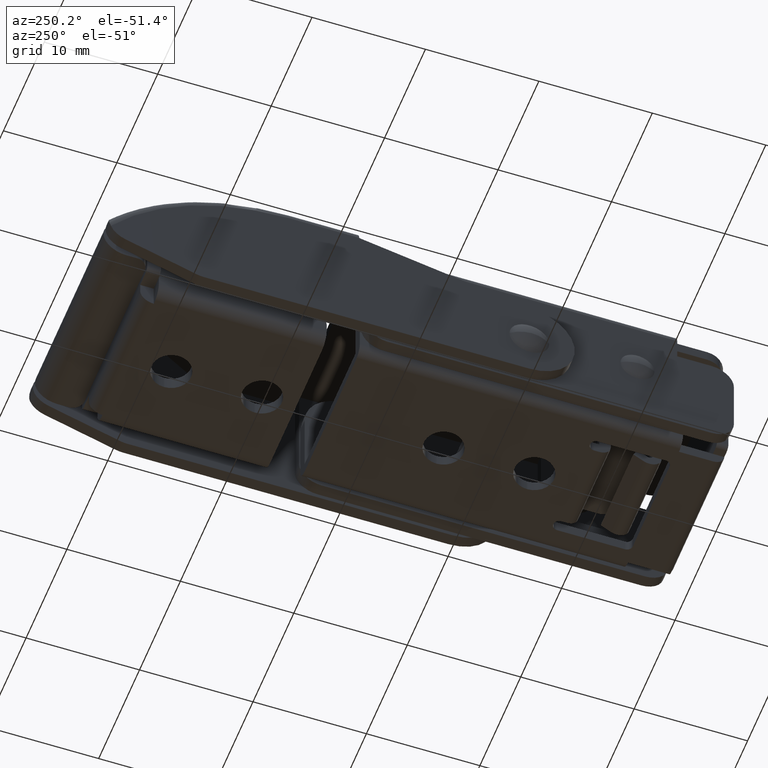
[diagram: clean part render]
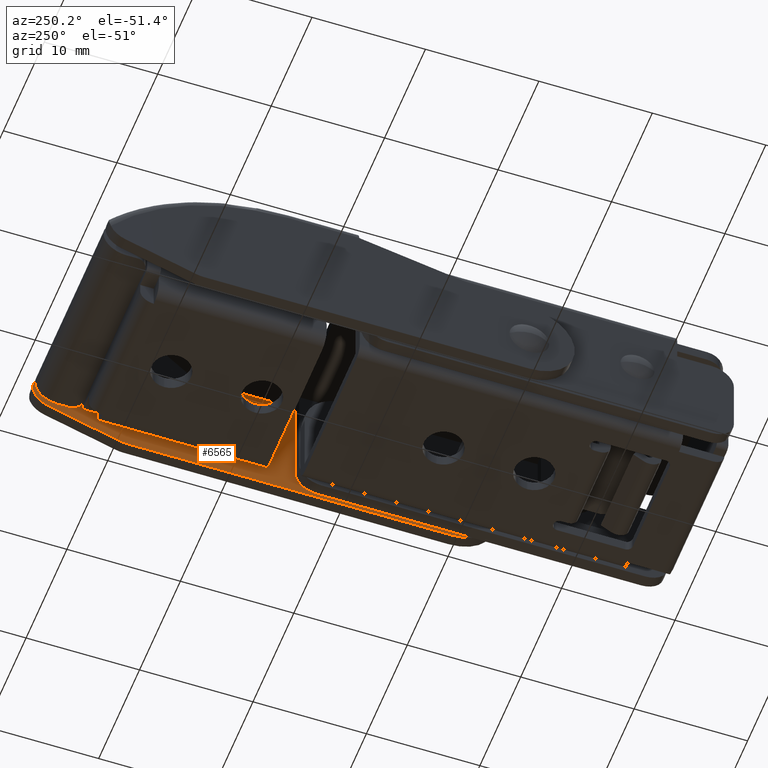
[diagram: same view with one face highlighted and labeled with its STEP entity id]
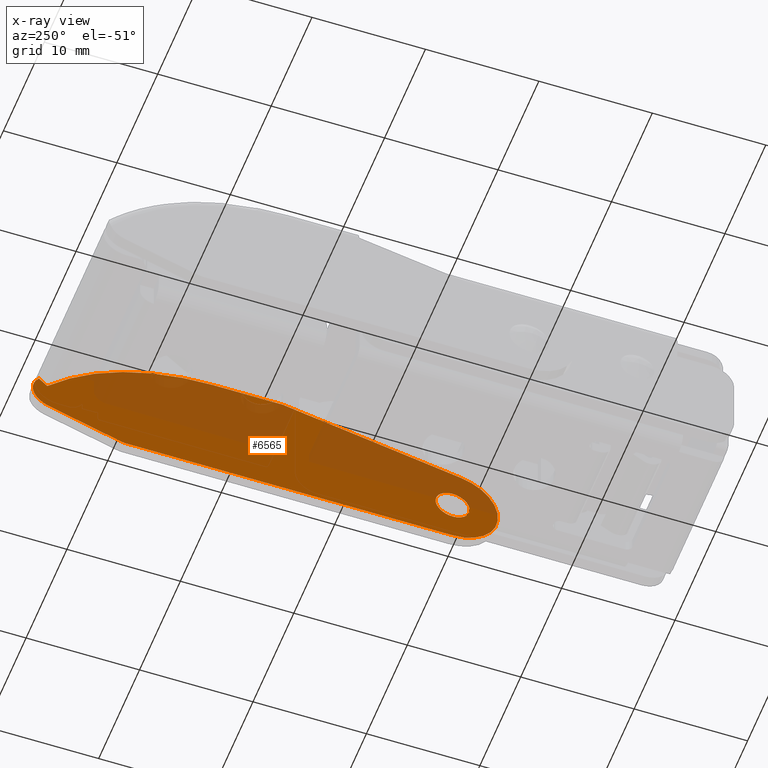
[diagram: x-ray of the same camera — body ghosted, the highlighted face saturated]
A machine part, auxiliary view. The second image highlights one B-rep face of the part: STEP entity #6565.
The next image is the same camera in x-ray: the body ghosted, the highlighted face saturated — about 47% of this face is hidden behind the body in this view.
In plain terms, the highlighted planar face has unit normal (1, 0, 0).
Its self-contained STEP definition (entity closure, byte-faithful):
#91 = EDGE_CURVE ( 'NONE', #6999, #3627, #3610, .T. ) ;
#98 = CARTESIAN_POINT ( 'NONE',  ( 8.900000000000000400, 36.45856910111063300, 1.368421052631581200 ) ) ;
#117 = DIRECTION ( 'NONE',  ( 0.0000000000000000000, 0.9532542188779434800, 0.3021694792519620300 ) ) ;
#226 = CARTESIAN_POINT ( 'NONE',  ( 8.900000000000000400, 0.0000000000000000000, -4.000000000000000000 ) ) ;
#235 = CIRCLE ( 'NONE', #1897, 1.500000000000000200 ) ;
#318 = DIRECTION ( 'NONE',  ( 1.000000000000000000, 0.0000000000000000000, 0.0000000000000000000 ) ) ;
#333 = EDGE_LOOP ( 'NONE', ( #6440, #1939 ) ) ;
#459 = ORIENTED_EDGE ( 'NONE', *, *, #1227, .F. ) ;
#559 = VERTEX_POINT ( 'NONE', #1360 ) ;
#631 = VERTEX_POINT ( 'NONE', #6249 ) ;
#848 = VECTOR ( 'NONE', #3152, 1000.000000000000000 ) ;
#875 = DIRECTION ( 'NONE',  ( 1.000000000000000000, 0.0000000000000000000, 0.0000000000000000000 ) ) ;
#938 = CARTESIAN_POINT ( 'NONE',  ( 8.900000000000000400, 34.99999999999999300, 0.0000000000000000000 ) ) ;
#1135 = AXIS2_PLACEMENT_3D ( 'NONE', #7335, #3679, #7959 ) ;
#1201 = VECTOR ( 'NONE', #3137, 1000.000000000000000 ) ;
#1227 = EDGE_CURVE ( 'NONE', #7007, #1608, #3282, .T. ) ;
#1304 = EDGE_CURVE ( 'NONE', #4248, #1941, #7395, .T. ) ;
#1360 = CARTESIAN_POINT ( 'NONE',  ( 8.900000000000000400, 1.836970198721029900E-016, -1.500000000000000200 ) ) ;
#1418 = CARTESIAN_POINT ( 'NONE',  ( 8.900000000000000400, 0.0000000000000000000, 0.0000000000000000000 ) ) ;
#1552 = DIRECTION ( 'NONE',  ( 0.0000000000000000000, 0.0000000000000000000, -1.000000000000000000 ) ) ;
#1608 = VERTEX_POINT ( 'NONE', #4836 ) ;
#1669 = DIRECTION ( 'NONE',  ( 1.000000000000000000, 0.0000000000000000000, 0.0000000000000000000 ) ) ;
#1804 = EDGE_LOOP ( 'NONE', ( #459, #4329, #2261, #3034, #4606, #7663, #7049, #7955, #2955 ) ) ;
#1837 = CARTESIAN_POINT ( 'NONE',  ( 8.900000000000000400, 0.0000000000000000000, 1.500000000000000200 ) ) ;
#1897 = AXIS2_PLACEMENT_3D ( 'NONE', #4588, #875, #5208 ) ;
#1939 = ORIENTED_EDGE ( 'NONE', *, *, #5043, .T. ) ;
#1941 = VERTEX_POINT ( 'NONE', #2841 ) ;
#2037 = EDGE_CURVE ( 'NONE', #3627, #7043, #6918, .T. ) ;
#2043 = DIRECTION ( 'NONE',  ( 0.0000000000000000000, 0.0000000000000000000, -1.000000000000000000 ) ) ;
#2210 = LINE ( 'NONE', #4583, #6728 ) ;
#2220 = EDGE_CURVE ( 'NONE', #7043, #631, #2884, .T. ) ;
#2261 = ORIENTED_EDGE ( 'NONE', *, *, #1304, .F. ) ;
#2465 = AXIS2_PLACEMENT_3D ( 'NONE', #4044, #318, #4658 ) ;
#2591 = CARTESIAN_POINT ( 'NONE',  ( 8.900000000000000400, 21.14359353944897900, 7.000000000000004400 ) ) ;
#2841 = CARTESIAN_POINT ( 'NONE',  ( 8.900000000000000400, 28.69059892324149200, -4.000000000000000000 ) ) ;
#2884 = LINE ( 'NONE', #4955, #1201 ) ;
#2955 = ORIENTED_EDGE ( 'NONE', *, *, #6555, .F. ) ;
#2962 = EDGE_CURVE ( 'NONE', #7007, #1941, #3639, .T. ) ;
#2966 = CARTESIAN_POINT ( 'NONE',  ( 8.900000000000000400, 29.00000000000000000, -4.000000000000000000 ) ) ;
#3034 = ORIENTED_EDGE ( 'NONE', *, *, #6113, .T. ) ;
#3137 = DIRECTION ( 'NONE',  ( 0.0000000000000000000, -1.000000000000000000, -4.235444935047889500E-016 ) ) ;
#3152 = DIRECTION ( 'NONE',  ( 0.0000000000000000000, 1.000000000000000000, 0.0000000000000000000 ) ) ;
#3261 = VERTEX_POINT ( 'NONE', #5225 ) ;
#3282 = LINE ( 'NONE', #2966, #4726 ) ;
#3608 = DIRECTION ( 'NONE',  ( -1.000000000000000000, -0.0000000000000000000, 0.0000000000000000000 ) ) ;
#3610 = LINE ( 'NONE', #5635, #4668 ) ;
#3627 = VERTEX_POINT ( 'NONE', #7610 ) ;
#3639 = CIRCLE ( 'NONE', #1135, 2.000000000000000000 ) ;
#3645 = EDGE_CURVE ( 'NONE', #4547, #559, #235, .T. ) ;
#3679 = DIRECTION ( 'NONE',  ( -1.000000000000000000, -0.0000000000000000000, -0.0000000000000000000 ) ) ;
#3708 = AXIS2_PLACEMENT_3D ( 'NONE', #938, #5269, #1552 ) ;
#3775 = DIRECTION ( 'NONE',  ( 0.0000000000000000000, -0.7292845505553178200, -0.6842105263157883800 ) ) ;
#4044 = CARTESIAN_POINT ( 'NONE',  ( 8.900000000000000400, 34.99999999999999300, 0.0000000000000000000 ) ) ;
#4073 = AXIS2_PLACEMENT_3D ( 'NONE', #1418, #5750, #2043 ) ;
#4183 = EDGE_CURVE ( 'NONE', #631, #3261, #2210, .T. ) ;
#4248 = VERTEX_POINT ( 'NONE', #5680 ) ;
#4329 = ORIENTED_EDGE ( 'NONE', *, *, #2962, .T. ) ;
#4547 = VERTEX_POINT ( 'NONE', #1837 ) ;
#4583 = CARTESIAN_POINT ( 'NONE',  ( 8.900000000000000400, 15.00000000000000000, 7.000000000000001800 ) ) ;
#4588 = CARTESIAN_POINT ( 'NONE',  ( 8.900000000000000400, 0.0000000000000000000, 0.0000000000000000000 ) ) ;
#4606 = ORIENTED_EDGE ( 'NONE', *, *, #4183, .F. ) ;
#4658 = DIRECTION ( 'NONE',  ( 0.0000000000000000000, 0.0000000000000000000, -1.000000000000000000 ) ) ;
#4668 = VECTOR ( 'NONE', #3775, 1000.000000000000000 ) ;
#4684 = CIRCLE ( 'NONE', #5260, 4.000000000000000000 ) ;
#4726 = VECTOR ( 'NONE', #117, 1000.000000000000000 ) ;
#4836 = CARTESIAN_POINT ( 'NONE',  ( 8.900000000000000400, 35.60433895850392400, -1.906508437755890100 ) ) ;
#4849 = FACE_BOUND ( 'NONE', #333, .T. ) ;
#4955 = CARTESIAN_POINT ( 'NONE',  ( 8.900000000000000400, 21.14359353944897900, 7.000000000000004400 ) ) ;
#5028 = CARTESIAN_POINT ( 'NONE',  ( 8.900000000000000400, 29.29493788174542200, -3.906508437755886700 ) ) ;
#5043 = EDGE_CURVE ( 'NONE', #559, #4547, #5280, .T. ) ;
#5208 = DIRECTION ( 'NONE',  ( 0.0000000000000000000, 0.0000000000000000000, -1.000000000000000000 ) ) ;
#5225 = CARTESIAN_POINT ( 'NONE',  ( 8.900000000000000400, -0.7654985230578559300, 3.926068263695404500 ) ) ;
#5254 = CIRCLE ( 'NONE', #2465, 2.000000000000002200 ) ;
#5260 = AXIS2_PLACEMENT_3D ( 'NONE', #7263, #3608, #7891 ) ;
#5269 = DIRECTION ( 'NONE',  ( 1.000000000000000000, 0.0000000000000000000, 0.0000000000000000000 ) ) ;
#5280 = CIRCLE ( 'NONE', #4073, 1.500000000000000200 ) ;
#5395 = CARTESIAN_POINT ( 'NONE',  ( 8.900000000000000400, 21.14359353944897500, -13.00000000000000000 ) ) ;
#5635 = CARTESIAN_POINT ( 'NONE',  ( 8.900000000000000400, 36.45856910111063300, 1.368421052631581200 ) ) ;
#5680 = CARTESIAN_POINT ( 'NONE',  ( 8.900000000000000400, 4.898587196589412800E-016, -4.000000000000000000 ) ) ;
#5750 = DIRECTION ( 'NONE',  ( 1.000000000000000000, 0.0000000000000000000, 0.0000000000000000000 ) ) ;
#5822 = DIRECTION ( 'NONE',  ( 0.0000000000000000000, -0.9815170659238510200, -0.1913746307644638200 ) ) ;
#6002 = DIRECTION ( 'NONE',  ( 0.0000000000000000000, 0.0000000000000000000, -1.000000000000000000 ) ) ;
#6113 = EDGE_CURVE ( 'NONE', #4248, #3261, #4684, .T. ) ;
#6249 = CARTESIAN_POINT ( 'NONE',  ( 8.900000000000000400, 15.00000000000000000, 7.000000000000001800 ) ) ;
#6440 = ORIENTED_EDGE ( 'NONE', *, *, #3645, .T. ) ;
#6555 = EDGE_CURVE ( 'NONE', #1608, #6999, #5254, .T. ) ;
#6565 = ADVANCED_FACE ( 'NONE', ( #4849, #7922 ), #7709, .F. ) ;
#6728 = VECTOR ( 'NONE', #5822, 999.9999999999998900 ) ;
#6918 = CIRCLE ( 'NONE', #7135, 20.00000000000000400 ) ;
#6999 = VERTEX_POINT ( 'NONE', #98 ) ;
#7007 = VERTEX_POINT ( 'NONE', #5028 ) ;
#7043 = VERTEX_POINT ( 'NONE', #2591 ) ;
#7049 = ORIENTED_EDGE ( 'NONE', *, *, #2037, .F. ) ;
#7135 = AXIS2_PLACEMENT_3D ( 'NONE', #5395, #1669, #6002 ) ;
#7263 = CARTESIAN_POINT ( 'NONE',  ( 8.900000000000000400, 0.0000000000000000000, 0.0000000000000000000 ) ) ;
#7335 = CARTESIAN_POINT ( 'NONE',  ( 8.900000000000000400, 28.69059892324149900, -2.000000000000000000 ) ) ;
#7395 = LINE ( 'NONE', #226, #848 ) ;
#7610 = CARTESIAN_POINT ( 'NONE',  ( 8.900000000000000400, 35.72928455055531300, 0.6842105263157940400 ) ) ;
#7663 = ORIENTED_EDGE ( 'NONE', *, *, #2220, .F. ) ;
#7709 = PLANE ( 'NONE',  #3708 ) ;
#7891 = DIRECTION ( 'NONE',  ( 0.0000000000000000000, 0.0000000000000000000, 1.000000000000000000 ) ) ;
#7922 = FACE_OUTER_BOUND ( 'NONE', #1804, .T. ) ;
#7955 = ORIENTED_EDGE ( 'NONE', *, *, #91, .F. ) ;
#7959 = DIRECTION ( 'NONE',  ( 0.0000000000000000000, 0.0000000000000000000, -1.000000000000000000 ) ) ;